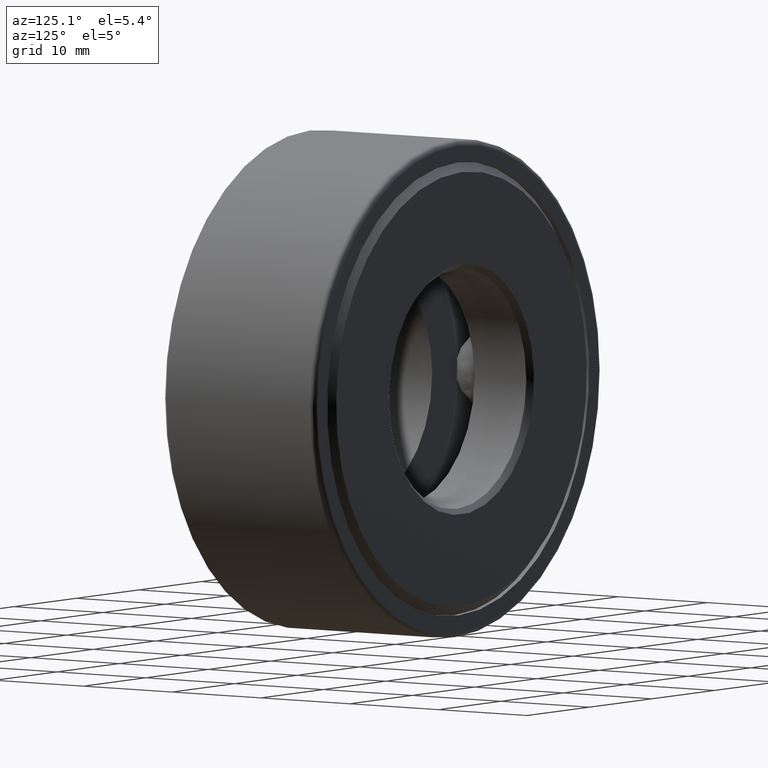
[diagram: clean part render]
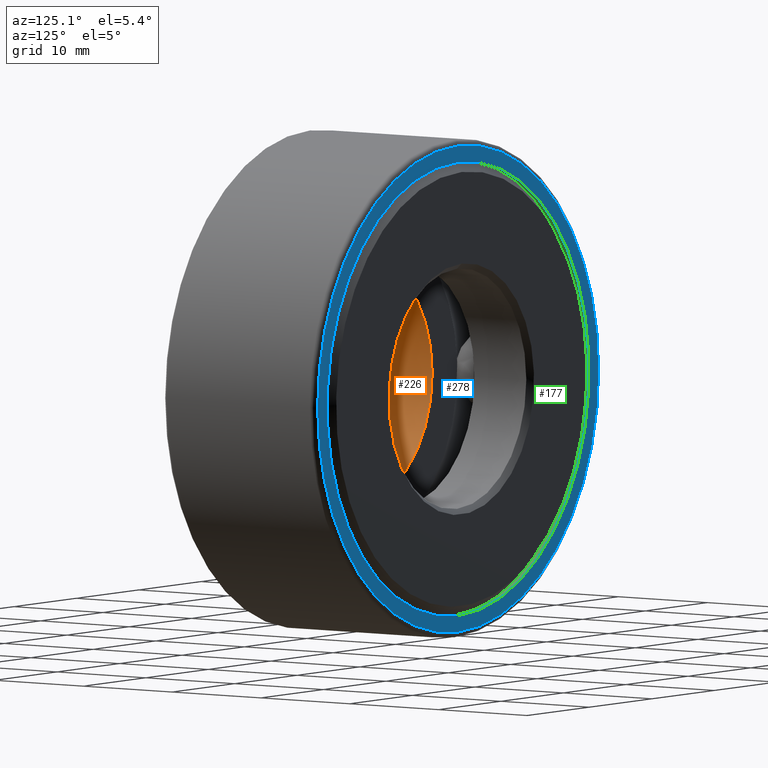
[diagram: same view with three faces highlighted in distinct colors, each labeled with its STEP entity id]
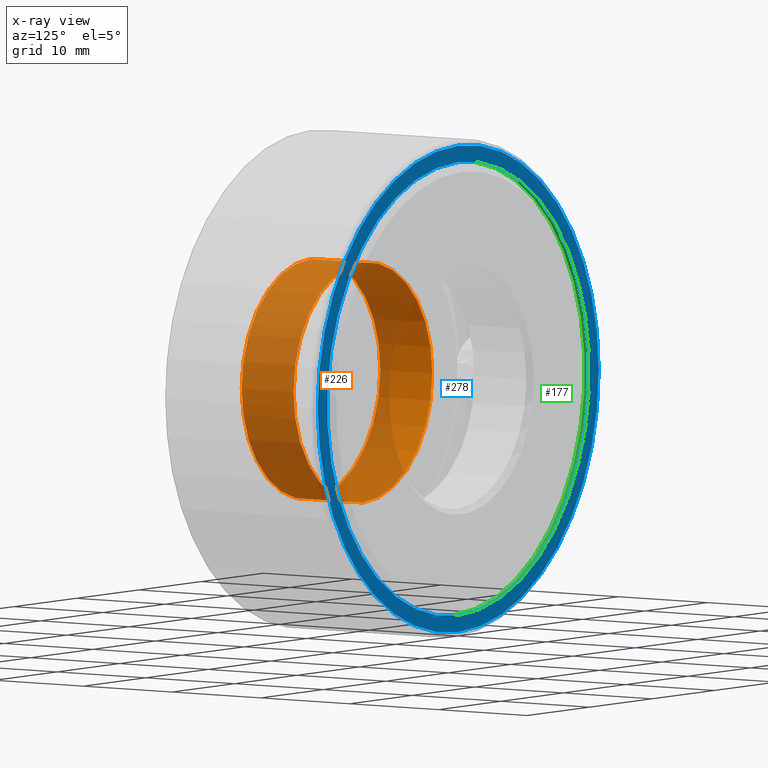
[diagram: x-ray of the same camera — body ghosted, the three highlighted faces saturated]
A machine part, auxiliary view with three faces highlighted in distinct colors.
The next image is the same camera in x-ray (body ghosted, the three faces saturated) — at least one of them is partly hidden behind the body in this view.
Their STEP definitions:

[orange] entity #226 — the highlighted cylindrical surface (bore or boss wall) has radius 11.1125 mm, axis along (-0, 1, -0).
#7 = DIRECTION ( 'NONE',  ( 0.0000000000000000000, 0.0000000000000000000, 1.000000000000000000 ) ) ;
#29 = EDGE_CURVE ( 'NONE', #499, #499, #392, .T. ) ;
#30 = FACE_OUTER_BOUND ( 'NONE', #581, .T. ) ;
#36 = EDGE_LOOP ( 'NONE', ( #183 ) ) ;
#54 = CARTESIAN_POINT ( 'NONE',  ( 0.0000000000000000000, 0.0000000000000000000, 0.0000000000000000000 ) ) ;
#90 = CARTESIAN_POINT ( 'NONE',  ( 0.0000000000000000000, 0.02000000000000005900, 0.0000000000000000000 ) ) ;
#110 = EDGE_CURVE ( 'NONE', #434, #434, #196, .T. ) ;
#153 = CYLINDRICAL_SURFACE ( 'NONE', #354, 0.4375000000000000600 ) ;
#182 = DIRECTION ( 'NONE',  ( -0.0000000000000000000, 1.000000000000000000, -0.0000000000000000000 ) ) ;
#183 = ORIENTED_EDGE ( 'NONE', *, *, #29, .T. ) ;
#196 = CIRCLE ( 'NONE', #262, 0.4375000000000000000 ) ;
#202 = FACE_OUTER_BOUND ( 'NONE', #36, .T. ) ;
#226 = ADVANCED_FACE ( 'NONE', ( #30, #202 ), #153, .F. ) ;
#262 = AXIS2_PLACEMENT_3D ( 'NONE', #90, #556, #422 ) ;
#328 = CARTESIAN_POINT ( 'NONE',  ( 0.0000000000000000000, 0.2500000000000000600, 0.0000000000000000000 ) ) ;
#330 = DIRECTION ( 'NONE',  ( 0.0000000000000000000, 0.0000000000000000000, 1.000000000000000000 ) ) ;
#354 = AXIS2_PLACEMENT_3D ( 'NONE', #54, #388, #7 ) ;
#388 = DIRECTION ( 'NONE',  ( -0.0000000000000000000, 1.000000000000000000, -0.0000000000000000000 ) ) ;
#392 = CIRCLE ( 'NONE', #583, 0.4375000000000000600 ) ;
#409 = ORIENTED_EDGE ( 'NONE', *, *, #110, .F. ) ;
#422 = DIRECTION ( 'NONE',  ( 0.0000000000000000000, 0.0000000000000000000, 1.000000000000000000 ) ) ;
#434 = VERTEX_POINT ( 'NONE', #466 ) ;
#466 = CARTESIAN_POINT ( 'NONE',  ( 0.0000000000000000000, 0.02000000000000005900, 0.4375000000000000000 ) ) ;
#499 = VERTEX_POINT ( 'NONE', #560 ) ;
#556 = DIRECTION ( 'NONE',  ( -0.0000000000000000000, 1.000000000000000000, -0.0000000000000000000 ) ) ;
#560 = CARTESIAN_POINT ( 'NONE',  ( 0.0000000000000000000, 0.2500000000000000600, 0.4375000000000000600 ) ) ;
#581 = EDGE_LOOP ( 'NONE', ( #409 ) ) ;
#583 = AXIS2_PLACEMENT_3D ( 'NONE', #328, #182, #330 ) ;

[blue] entity #278 — the highlighted planar face has unit normal (0, -1, 0).
#5 = DIRECTION ( 'NONE',  ( 0.0000000000000000000, -1.000000000000000000, 0.0000000000000000000 ) ) ;
#43 = CARTESIAN_POINT ( 'NONE',  ( 0.0000000000000000000, 0.6724999999999999900, 0.8862499999999999800 ) ) ;
#62 = DIRECTION ( 'NONE',  ( -0.0000000000000000000, 1.000000000000000000, -0.0000000000000000000 ) ) ;
#63 = CARTESIAN_POINT ( 'NONE',  ( 0.0000000000000000000, 0.6724999999999999900, 0.0000000000000000000 ) ) ;
#76 = VERTEX_POINT ( 'NONE', #43 ) ;
#109 = DIRECTION ( 'NONE',  ( 0.0000000000000000000, -0.0000000000000000000, -1.000000000000000000 ) ) ;
#124 = DIRECTION ( 'NONE',  ( -0.0000000000000000000, 1.000000000000000000, -0.0000000000000000000 ) ) ;
#154 = EDGE_LOOP ( 'NONE', ( #189 ) ) ;
#189 = ORIENTED_EDGE ( 'NONE', *, *, #517, .F. ) ;
#236 = CARTESIAN_POINT ( 'NONE',  ( 0.0000000000000000000, 0.6724999999999999900, 0.0000000000000000000 ) ) ;
#256 = AXIS2_PLACEMENT_3D ( 'NONE', #587, #124, #355 ) ;
#266 = FACE_OUTER_BOUND ( 'NONE', #287, .T. ) ;
#278 = ADVANCED_FACE ( 'NONE', ( #438, #266 ), #522, .F. ) ;
#286 = EDGE_CURVE ( 'NONE', #76, #76, #527, .T. ) ;
#287 = EDGE_LOOP ( 'NONE', ( #604 ) ) ;
#355 = DIRECTION ( 'NONE',  ( 0.0000000000000000000, 0.0000000000000000000, 1.000000000000000000 ) ) ;
#371 = CIRCLE ( 'NONE', #256, 0.8262499999999999300 ) ;
#393 = AXIS2_PLACEMENT_3D ( 'NONE', #236, #5, #109 ) ;
#394 = DIRECTION ( 'NONE',  ( 0.0000000000000000000, 0.0000000000000000000, 1.000000000000000000 ) ) ;
#421 = CARTESIAN_POINT ( 'NONE',  ( 0.0000000000000000000, 0.6724999999999999900, 0.8262499999999999300 ) ) ;
#438 = FACE_BOUND ( 'NONE', #154, .T. ) ;
#517 = EDGE_CURVE ( 'NONE', #544, #544, #371, .T. ) ;
#522 = PLANE ( 'NONE',  #393 ) ;
#527 = CIRCLE ( 'NONE', #538, 0.8862499999999999800 ) ;
#538 = AXIS2_PLACEMENT_3D ( 'NONE', #63, #62, #394 ) ;
#544 = VERTEX_POINT ( 'NONE', #421 ) ;
#587 = CARTESIAN_POINT ( 'NONE',  ( 0.0000000000000000000, 0.6724999999999999900, 0.0000000000000000000 ) ) ;
#604 = ORIENTED_EDGE ( 'NONE', *, *, #286, .T. ) ;

[green] entity #177 — the highlighted cylindrical surface (bore or boss wall) has radius 20.9867 mm, axis along (-0, 1, -0).
#4 = DIRECTION ( 'NONE',  ( 0.0000000000000000000, 0.0000000000000000000, 1.000000000000000000 ) ) ;
#8 = DIRECTION ( 'NONE',  ( -0.0000000000000000000, 1.000000000000000000, -0.0000000000000000000 ) ) ;
#124 = DIRECTION ( 'NONE',  ( -0.0000000000000000000, 1.000000000000000000, -0.0000000000000000000 ) ) ;
#144 = CARTESIAN_POINT ( 'NONE',  ( 0.0000000000000000000, 0.6524999999999999700, 0.8262499999999999300 ) ) ;
#167 = FACE_OUTER_BOUND ( 'NONE', #260, .T. ) ;
#177 = ADVANCED_FACE ( 'NONE', ( #167, #533 ), #601, .F. ) ;
#190 = CARTESIAN_POINT ( 'NONE',  ( 0.0000000000000000000, 0.6524999999999999700, 0.0000000000000000000 ) ) ;
#239 = VERTEX_POINT ( 'NONE', #144 ) ;
#251 = EDGE_CURVE ( 'NONE', #239, #239, #281, .T. ) ;
#256 = AXIS2_PLACEMENT_3D ( 'NONE', #587, #124, #355 ) ;
#260 = EDGE_LOOP ( 'NONE', ( #473 ) ) ;
#281 = CIRCLE ( 'NONE', #307, 0.8262499999999999300 ) ;
#284 = DIRECTION ( 'NONE',  ( 0.0000000000000000000, 0.0000000000000000000, 1.000000000000000000 ) ) ;
#288 = CARTESIAN_POINT ( 'NONE',  ( 0.0000000000000000000, 0.0000000000000000000, 0.0000000000000000000 ) ) ;
#294 = AXIS2_PLACEMENT_3D ( 'NONE', #288, #8, #4 ) ;
#307 = AXIS2_PLACEMENT_3D ( 'NONE', #190, #564, #284 ) ;
#355 = DIRECTION ( 'NONE',  ( 0.0000000000000000000, 0.0000000000000000000, 1.000000000000000000 ) ) ;
#371 = CIRCLE ( 'NONE', #256, 0.8262499999999999300 ) ;
#403 = EDGE_LOOP ( 'NONE', ( #529 ) ) ;
#421 = CARTESIAN_POINT ( 'NONE',  ( 0.0000000000000000000, 0.6724999999999999900, 0.8262499999999999300 ) ) ;
#473 = ORIENTED_EDGE ( 'NONE', *, *, #251, .F. ) ;
#517 = EDGE_CURVE ( 'NONE', #544, #544, #371, .T. ) ;
#529 = ORIENTED_EDGE ( 'NONE', *, *, #517, .T. ) ;
#533 = FACE_OUTER_BOUND ( 'NONE', #403, .T. ) ;
#544 = VERTEX_POINT ( 'NONE', #421 ) ;
#564 = DIRECTION ( 'NONE',  ( -0.0000000000000000000, 1.000000000000000000, -0.0000000000000000000 ) ) ;
#587 = CARTESIAN_POINT ( 'NONE',  ( 0.0000000000000000000, 0.6724999999999999900, 0.0000000000000000000 ) ) ;
#601 = CYLINDRICAL_SURFACE ( 'NONE', #294, 0.8262499999999999300 ) ;